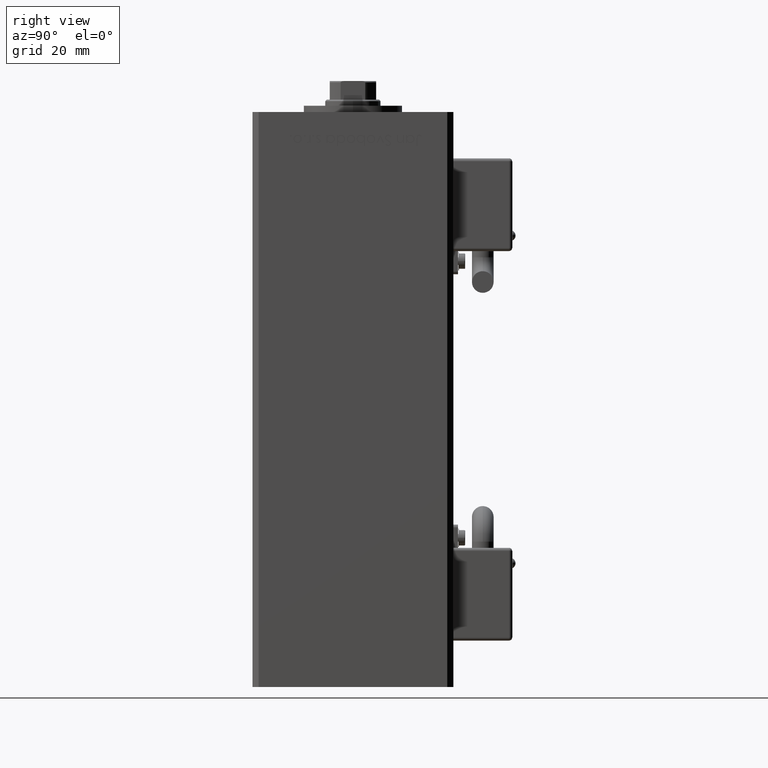
[diagram: clean part render]
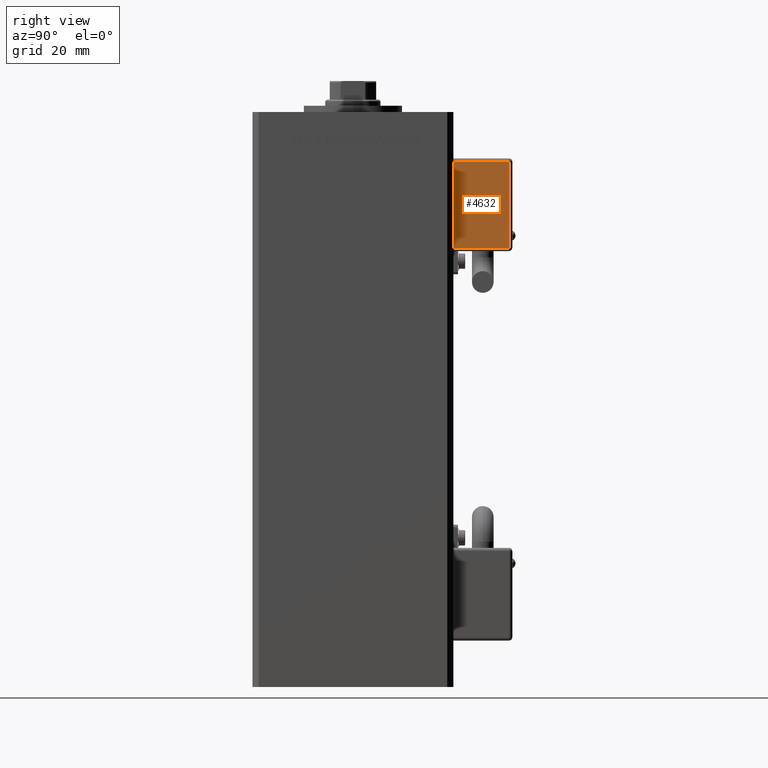
[diagram: same view with one face highlighted and labeled with its STEP entity id]
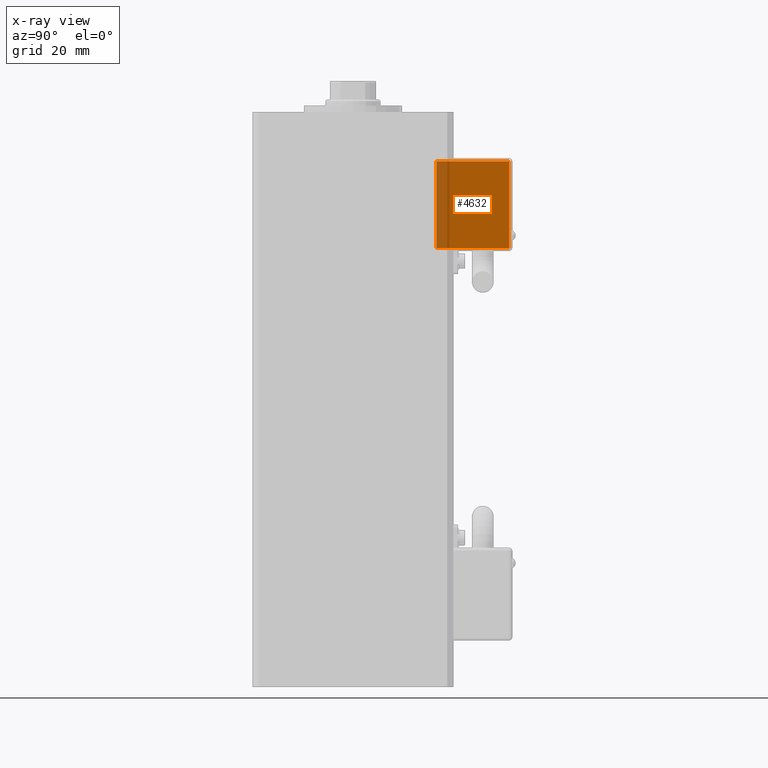
[diagram: x-ray of the same camera — body ghosted, the highlighted face saturated]
A machine part, right view. The second image highlights one B-rep face of the part: STEP entity #4632.
The next image is the same camera in x-ray: the body ghosted, the highlighted face saturated — about 18% of this face is hidden behind the body in this view.
In plain terms, the highlighted planar face has unit normal (1, 0, 0).
Its self-contained STEP definition (entity closure, byte-faithful):
#1518 = CARTESIAN_POINT ( 'NONE',  ( 10.80000000000000071, 50.50000000000000000, -25.00000000000000000 ) ) ;
#2028 = CARTESIAN_POINT ( 'NONE',  ( 10.80000000000000071, 50.50000000000000000, -26.00000000000000000 ) ) ;
#2907 = VECTOR ( 'NONE', #19992, 1000.000000000000000 ) ;
#4632 = ADVANCED_FACE ( 'NONE', ( #21681 ), #41818, .T. ) ;
#4658 = DIRECTION ( 'NONE',  ( -3.108624468950000014E-32, 1.000000000000000000, 1.400000000000000069E-16 ) ) ;
#4930 = LINE ( 'NONE', #26150, #45200 ) ;
#5534 = ORIENTED_EDGE ( 'NONE', *, *, #47191, .T. ) ;
#10116 = VERTEX_POINT ( 'NONE', #14851 ) ;
#10432 = CARTESIAN_POINT ( 'NONE',  ( 10.80000000000000071, 26.00000000000000000, -26.00000000000000000 ) ) ;
#14851 = CARTESIAN_POINT ( 'NONE',  ( 10.80000000000000071, 27.00000000000000000, -26.00000000000000000 ) ) ;
#15536 = VERTEX_POINT ( 'NONE', #53799 ) ;
#16073 = LINE ( 'NONE', #32026, #2907 ) ;
#16103 = AXIS2_PLACEMENT_3D ( 'NONE', #37631, #16389, #50453 ) ;
#16389 = DIRECTION ( 'NONE',  ( 1.000000000000000000, 4.930380657629929601E-32, 1.094764425253299406E-47 ) ) ;
#17635 = EDGE_CURVE ( 'NONE', #15536, #34871, #4930, .T. ) ;
#19992 = DIRECTION ( 'NONE',  ( 2.220446049250000002E-16, 1.200000000000000024E-16, -1.000000000000000000 ) ) ;
#21151 = EDGE_CURVE ( 'NONE', #24775, #10116, #35851, .T. ) ;
#21681 = FACE_OUTER_BOUND ( 'NONE', #26744, .T. ) ;
#21783 = CARTESIAN_POINT ( 'NONE',  ( 10.80000000000000071, 50.50000000000000000, -54.00000000000000000 ) ) ;
#24775 = VERTEX_POINT ( 'NONE', #2028 ) ;
#26150 = CARTESIAN_POINT ( 'NONE',  ( 10.80000000000000071, 51.50000000000000000, -54.00000000000000000 ) ) ;
#26744 = EDGE_LOOP ( 'NONE', ( #28108, #5534, #45569, #28451 ) ) ;
#27461 = DIRECTION ( 'NONE',  ( 3.108624468950000014E-32, -1.000000000000000000, -1.400000000000000069E-16 ) ) ;
#28108 = ORIENTED_EDGE ( 'NONE', *, *, #21151, .T. ) ;
#28451 = ORIENTED_EDGE ( 'NONE', *, *, #49268, .T. ) ;
#32026 = CARTESIAN_POINT ( 'NONE',  ( 10.80000000000000071, 27.00000000000000000, -55.00000000000000000 ) ) ;
#34871 = VERTEX_POINT ( 'NONE', #21783 ) ;
#35851 = LINE ( 'NONE', #10432, #54119 ) ;
#37631 = CARTESIAN_POINT ( 'NONE',  ( 10.80000000000000071, 26.00000000000000000, -55.00000000000000000 ) ) ;
#41818 = PLANE ( 'NONE',  #16103 ) ;
#43965 = LINE ( 'NONE', #1518, #48444 ) ;
#45200 = VECTOR ( 'NONE', #4658, 1000.000000000000000 ) ;
#45569 = ORIENTED_EDGE ( 'NONE', *, *, #17635, .T. ) ;
#47191 = EDGE_CURVE ( 'NONE', #10116, #15536, #16073, .T. ) ;
#48444 = VECTOR ( 'NONE', #51796, 1000.000000000000000 ) ;
#49268 = EDGE_CURVE ( 'NONE', #34871, #24775, #43965, .T. ) ;
#50453 = DIRECTION ( 'NONE',  ( 0.000000000000000000, -2.220446049250000002E-16, 1.000000000000000000 ) ) ;
#51796 = DIRECTION ( 'NONE',  ( -2.220446049250000002E-16, -1.200000000000000024E-16, 1.000000000000000000 ) ) ;
#53799 = CARTESIAN_POINT ( 'NONE',  ( 10.80000000000000071, 27.00000000000000000, -54.00000000000000000 ) ) ;
#54119 = VECTOR ( 'NONE', #27461, 1000.000000000000000 ) ;